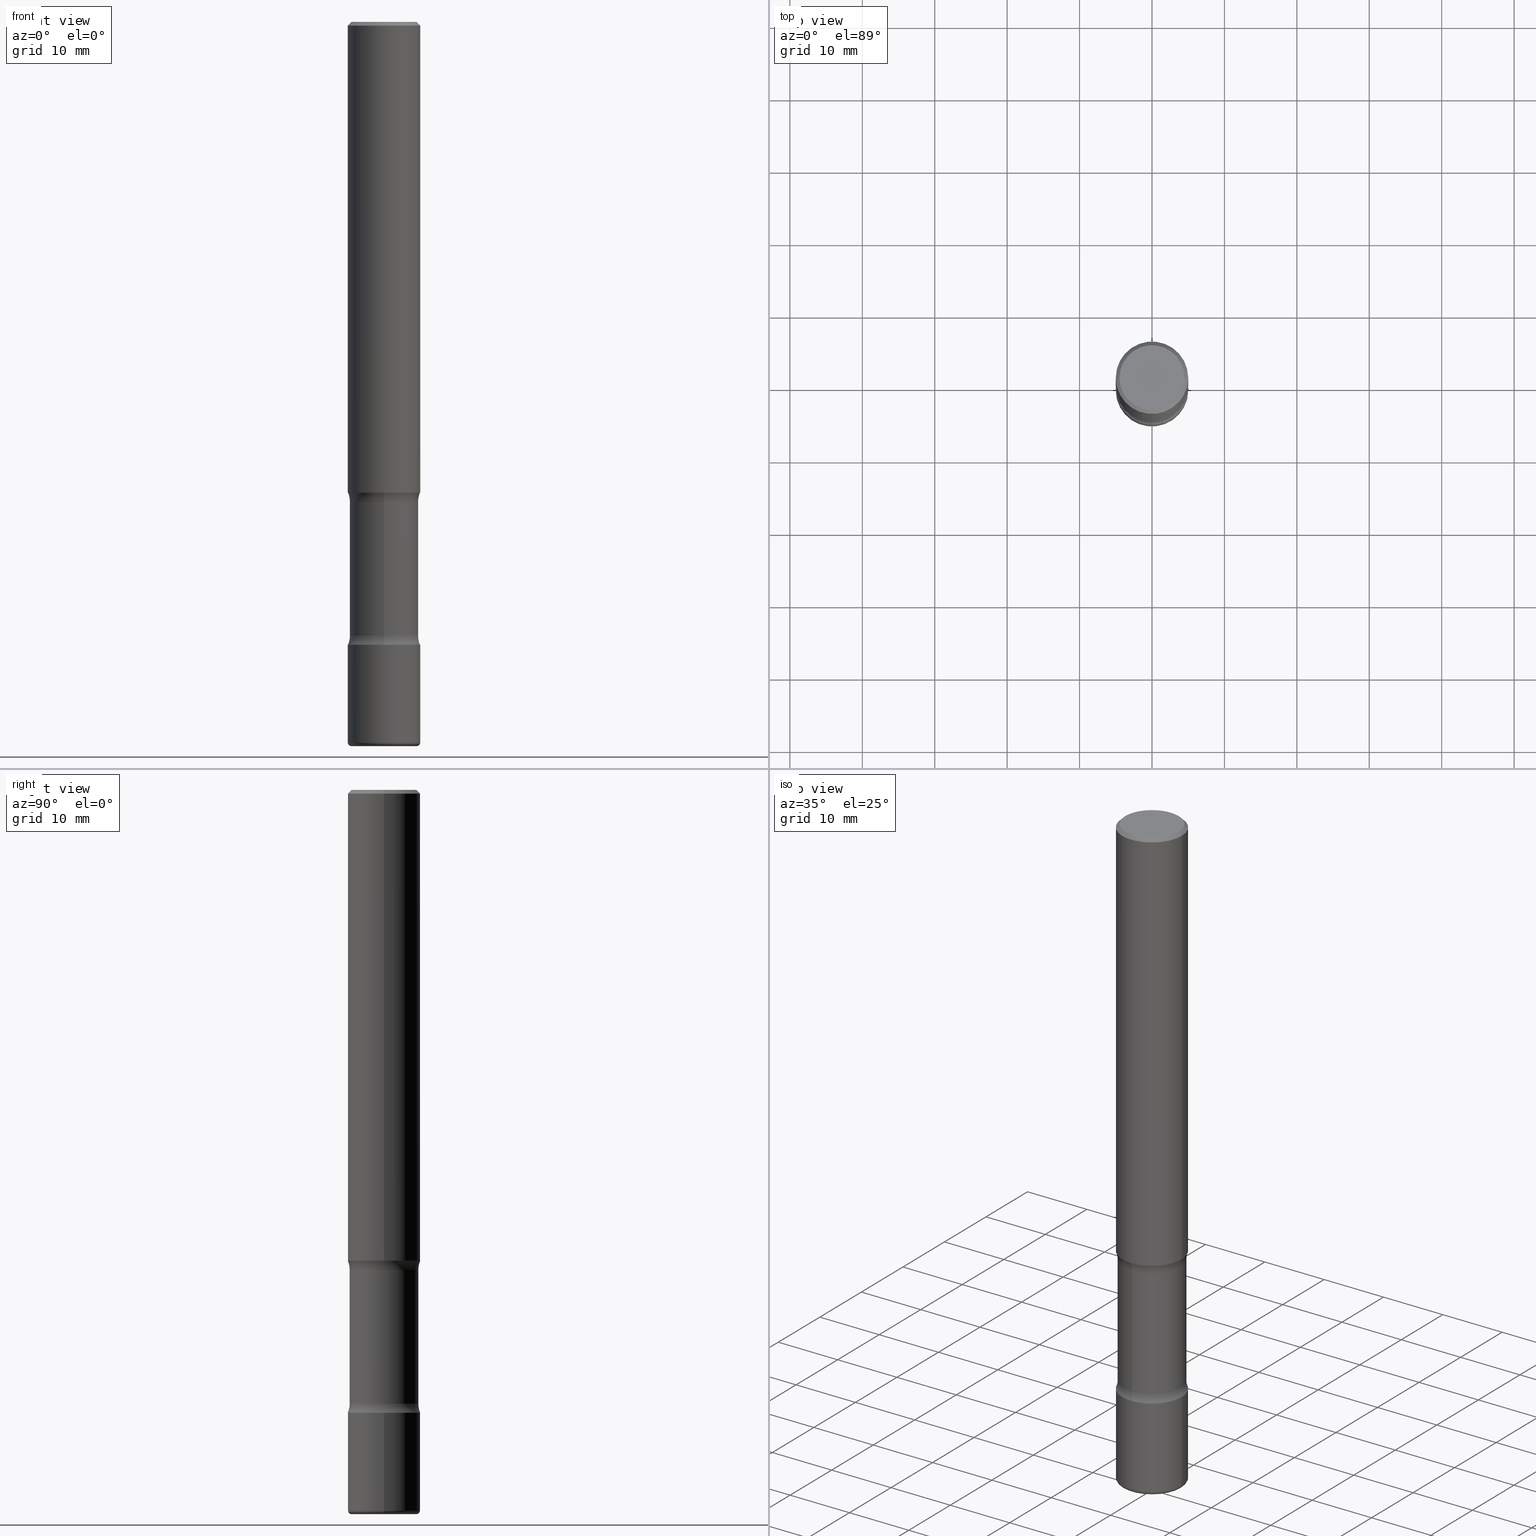
[diagram: canonical four-view strip — front | top / right | iso, engineering-drawing reading convention]
A machine part, canonical four-view strip (front | top / right | iso — engineering-drawing reading convention). The complete STEP part file that produces these views, byte-faithful:
ISO-10303-21;
HEADER;
FILE_DESCRIPTION (( 'STEP AP203' ),
    '1' );
FILE_NAME ('44798.STEP',
    '2024-03-02T03:27:32',
    ( '' ),
    ( '' ),
    'SwSTEP 2.0',
    'SolidWorks 2023',
    '' );
FILE_SCHEMA (( 'CONFIG_CONTROL_DESIGN' ));
ENDSEC;

DATA;
#1 = DIRECTION ( 'NONE',  ( -2.445468806185136597E-29, 3.491481338843145583E-15, 1.000000000000000000 ) ) ;
#2 = ORIENTED_EDGE ( 'NONE', *, *, #424, .T. ) ;
#3 = PRODUCT_DEFINITION ( 'UNKNOWN', '', #550, #444 ) ;
#4 =( LENGTH_UNIT ( ) NAMED_UNIT ( * ) SI_UNIT ( $, .METRE. ) );
#5 = ORIENTED_EDGE ( 'NONE', *, *, #282, .F. ) ;
#6 = EDGE_CURVE ( 'NONE', #33, #47, #157, .T. ) ;
#7 = DIRECTION ( 'NONE',  ( 2.591588243807108620E-29, -3.282229987566573640E-15, -1.000000000000000000 ) ) ;
#8 = AXIS2_PLACEMENT_3D ( 'NONE', #251, #342, #427 ) ;
#9 = CIRCLE ( 'NONE', #526, 0.1968500000000001082 ) ;
#10 = APPROVAL_PERSON_ORGANIZATION ( #492, #144, #273 ) ;
#11 = DIRECTION ( 'NONE',  ( 1.000000000000000000, -6.982962677686266711E-15, 4.875932113059883053E-29 ) ) ;
#12 = DIRECTION ( 'NONE',  ( -2.445468806185136877E-29, 3.491481338843145188E-15, 1.000000000000000000 ) ) ;
#13 = COORDINATED_UNIVERSAL_TIME_OFFSET ( 5, 0, .BEHIND. ) ;
#14 = CARTESIAN_POINT ( 'NONE',  ( 0.1771500000000001962, -1.498299386937758739E-14, -3.937000000000000277 ) ) ;
#15 = DIRECTION ( 'NONE',  ( -1.000000000000000000, 6.982962677686265922E-15, -4.883557194083112340E-29 ) ) ;
#16 = CARTESIAN_POINT ( 'NONE',  ( -1.350489030861243387E-15, -0.1968500000000119043, -3.385799999999999255 ) ) ;
#17 = ADVANCED_FACE ( 'NONE', ( #514 ), #322, .T. ) ;
#18 = AXIS2_PLACEMENT_3D ( 'NONE', #241, #66, #378 ) ;
#19 = EDGE_CURVE ( 'NONE', #390, #354, #445, .T. ) ;
#20 = FACE_OUTER_BOUND ( 'NONE', #554, .T. ) ;
#21 = DATE_AND_TIME ( #499, #204 ) ;
#22 = CYLINDRICAL_SURFACE ( 'NONE', #81, 0.1866500000000000381 ) ;
#23 = DIRECTION ( 'NONE',  ( 7.105427357601001859E-15, 1.000000000000000000, -3.491481338843145583E-15 ) ) ;
#24 = EDGE_LOOP ( 'NONE', ( #41, #301, #239, #469 ) ) ;
#25 = CLOSED_SHELL ( 'NONE', ( #486, #245, #460, #502, #350, #279, #181, #307 ) ) ;
#26 = AXIS2_PLACEMENT_3D ( 'NONE', #171, #515, #295 ) ;
#27 = PERSON_AND_ORGANIZATION ( #148, #318 ) ;
#28 = DIRECTION ( 'NONE',  ( -2.445468806185136597E-29, 3.491481338843145583E-15, 1.000000000000000000 ) ) ;
#29 = ORIENTED_EDGE ( 'NONE', *, *, #294, .T. ) ;
#30 = DIRECTION ( 'NONE',  ( 1.000000000000000000, -6.982962677686266711E-15, 0.000000000000000000 ) ) ;
#31 = EDGE_LOOP ( 'NONE', ( #286, #117 ) ) ;
#32 = DIRECTION ( 'NONE',  ( 2.591588243807108620E-29, -3.282229987566573640E-15, -1.000000000000000000 ) ) ;
#33 = VERTEX_POINT ( 'NONE', #434 ) ;
#34 = CIRCLE ( 'NONE', #26, 0.1968500000000001082 ) ;
#35 = CYLINDRICAL_SURFACE ( 'NONE', #52, 0.1866500000000000381 ) ;
#36 = EDGE_LOOP ( 'NONE', ( #123, #2, #330, #509 ) ) ;
#37 = CARTESIAN_POINT ( 'NONE',  ( 9.579634954469036932E-29, -1.367717984865025539E-14, -3.917300000000000448 ) ) ;
#38 = VERTEX_POINT ( 'NONE', #14 ) ;
#39 = EDGE_CURVE ( 'NONE', #520, #71, #194, .T. ) ;
#40 = DIRECTION ( 'NONE',  ( 6.982962677686265922E-15, 1.000000000000000000, -3.282229987566573640E-15 ) ) ;
#41 = ORIENTED_EDGE ( 'NONE', *, *, #39, .F. ) ;
#42 = DIRECTION ( 'NONE',  ( 6.982962677686265922E-15, 1.000000000000000000, -3.282229987566573640E-15 ) ) ;
#43 = CLOSED_SHELL ( 'NONE', ( #79, #380, #338, #359, #394, #63 ) ) ;
#44 = ORIENTED_EDGE ( 'NONE', *, *, #374, .T. ) ;
#45 = ADVANCED_FACE ( 'NONE', ( #20 ), #188, .T. ) ;
#46 = CARTESIAN_POINT ( 'NONE',  ( 1.303369983790223149E-15, 0.1866499999999883530, -3.336343352317408861 ) ) ;
#47 = VERTEX_POINT ( 'NONE', #225 ) ;
#48 = PERSON_AND_ORGANIZATION_ROLE ( 'design_owner' ) ;
#49 = MANIFOLD_SOLID_BREP ( 'Body-Move/Copy2[2]', #516 ) ;
#50 = CARTESIAN_POINT ( 'NONE',  ( -1.043851414335219820E-46, 1.490343170380447200E-32, 4.268512490100411279E-18 ) ) ;
#51 = DIRECTION ( 'NONE',  ( 1.000000000000000000, -6.860497997771530774E-15, 4.843361469599724329E-29 ) ) ;
#52 = AXIS2_PLACEMENT_3D ( 'NONE', #83, #510, #125 ) ;
#53 = CALENDAR_DATE ( 2024, 1, 3 ) ;
#54 = CARTESIAN_POINT ( 'NONE',  ( 8.279868283981634472E-29, -1.182145751705512057E-14, -3.385799999999999699 ) ) ;
#55 = CALENDAR_DATE ( 2024, 1, 3 ) ;
#56 = CARTESIAN_POINT ( 'NONE',  ( 0.1968499999999999694, -1.374596203102541411E-15, 9.598753983154298056E-30 ) ) ;
#57 = CARTESIAN_POINT ( 'NONE',  ( 0.1968499999999998307, -1.420318657638187938E-15, -0.02000000000000006981 ) ) ;
#58 = DIRECTION ( 'NONE',  ( 6.982962677686265922E-15, 1.000000000000000000, -2.775563112689115117E-15 ) ) ;
#59 = CIRCLE ( 'NONE', #382, 0.01969999999999989468 ) ;
#60 = EDGE_CURVE ( 'NONE', #457, #375, #453, .T. ) ;
#61 = CC_DESIGN_SECURITY_CLASSIFICATION ( #103, ( #550 ) ) ;
#62 = DIRECTION ( 'NONE',  ( -2.591588243807108060E-29, 3.282229987566573640E-15, 1.000000000000000000 ) ) ;
#63 = ADVANCED_FACE ( 'NONE', ( #308 ), #366, .F. ) ;
#64 = ORIENTED_EDGE ( 'NONE', *, *, #513, .T. ) ;
#65 = PERSON_AND_ORGANIZATION_ROLE ( 'creator' ) ;
#66 = DIRECTION ( 'NONE',  ( 2.591588243807108620E-29, -3.282229987566573640E-15, -1.000000000000000000 ) ) ;
#67 = VERTEX_POINT ( 'NONE', #399 ) ;
#68 = DATE_AND_TIME ( #458, #336 ) ;
#69 = ADVANCED_FACE ( 'NONE', ( #320 ), #367, .F. ) ;
#70 = CARTESIAN_POINT ( 'NONE',  ( -1.280511951283959495E-15, -0.1866500000000136661, -3.936999999999999389 ) ) ;
#71 = VERTEX_POINT ( 'NONE', #528 ) ;
#72 = DATE_TIME_ROLE ( 'classification_date' ) ;
#73 = CARTESIAN_POINT ( 'NONE',  ( -2.138074201005416717E-15, -0.3116500000000117510, -3.336343352317407085 ) ) ;
#74 = ORIENTED_EDGE ( 'NONE', *, *, #430, .T. ) ;
#75 = DIRECTION ( 'NONE',  ( 1.000000000000000000, -6.982962677686272233E-15, 0.000000000000000000 ) ) ;
#76 = EDGE_LOOP ( 'NONE', ( #537, #180, #253, #439 ) ) ;
#77 = CARTESIAN_POINT ( 'NONE',  ( 6.257954675027765161E-29, -8.934700746099610252E-15, -2.559000000000000163 ) ) ;
#78 = ORIENTED_EDGE ( 'NONE', *, *, #416, .F. ) ;
#79 = ADVANCED_FACE ( 'NONE', ( #231 ), #495, .T. ) ;
#80 = CIRCLE ( 'NONE', #346, 0.1866500000000000103 ) ;
#81 = AXIS2_PLACEMENT_3D ( 'NONE', #333, #32, #329 ) ;
#82 = CC_DESIGN_PERSON_AND_ORGANIZATION_ASSIGNMENT ( #398, #404, ( #3 ) ) ;
#83 = CARTESIAN_POINT ( 'NONE',  ( 9.708351723968114409E-29, -1.363062268620181708E-14, -3.937000000000000277 ) ) ;
#84 = CARTESIAN_POINT ( 'NONE',  ( 2.176240318501006882E-15, 0.3116499999999883808, -3.336343352317409305 ) ) ;
#85 = EDGE_CURVE ( 'NONE', #387, #67, #260, .T. ) ;
#86 = CARTESIAN_POINT ( 'NONE',  ( 0.000000000000000000, 0.000000000000000000, 0.000000000000000000 ) ) ;
#87 = DIRECTION ( 'NONE',  ( -6.982962677686265133E-15, -1.000000000000000000, 0.000000000000000000 ) ) ;
#88 = CYLINDRICAL_SURFACE ( 'NONE', #335, 0.1968500000000001360 ) ;
#89 = ORIENTED_EDGE ( 'NONE', *, *, #259, .T. ) ;
#90 = CC_DESIGN_PERSON_AND_ORGANIZATION_ASSIGNMENT ( #27, #65, ( #550 ) ) ;
#91 = DIRECTION ( 'NONE',  ( 2.591588243807108060E-29, -3.282229987566573640E-15, -1.000000000000000000 ) ) ;
#92 = AXIS2_PLACEMENT_3D ( 'NONE', #431, #480, #302 ) ;
#93 = EDGE_LOOP ( 'NONE', ( #222, #283, #388, #352 ) ) ;
#94 = LOCAL_TIME ( 22, 27, 32.00000000000000000, #467 ) ;
#95 = LINE ( 'NONE', #56, #130 ) ;
#96 = EDGE_CURVE ( 'NONE', #412, #559, #95, .T. ) ;
#97 = DIRECTION ( 'NONE',  ( 2.591588243807108620E-29, -3.282229987566573640E-15, -1.000000000000000000 ) ) ;
#98 = CARTESIAN_POINT ( 'NONE',  ( -1.315500491072608935E-15, -0.1866500000000116399, -3.336343352317407529 ) ) ;
#99 = CARTESIAN_POINT ( 'NONE',  ( 0.000000000000000000, 0.000000000000000000, 0.000000000000000000 ) ) ;
#100 = DIRECTION ( 'NONE',  ( 6.982962677686265922E-15, 1.000000000000000000, -2.775563112689112751E-15 ) ) ;
#101 = AXIS2_PLACEMENT_3D ( 'NONE', #441, #107, #191 ) ;
#102 = AXIS2_PLACEMENT_3D ( 'NONE', #344, #292, #389 ) ;
#103 = SECURITY_CLASSIFICATION ( '', '', #542 ) ;
#104 = APPROVAL_STATUS ( 'not_yet_approved' ) ;
#105 = CARTESIAN_POINT ( 'NONE',  ( 6.137143124001919052E-29, -9.107709763335080543E-15, -2.559000000000000163 ) ) ;
#106 =( NAMED_UNIT ( * ) PLANE_ANGLE_UNIT ( ) SI_UNIT ( $, .RADIAN. ) );
#107 = DIRECTION ( 'NONE',  ( -2.445468806185136597E-29, 3.491481338843145583E-15, 1.000000000000000000 ) ) ;
#108 = COORDINATED_UNIVERSAL_TIME_OFFSET ( 5, 0, .BEHIND. ) ;
#109 = FACE_OUTER_BOUND ( 'NONE', #255, .T. ) ;
#110 = AXIS2_PLACEMENT_3D ( 'NONE', #534, #7, #363 ) ;
#111 = AXIS2_PLACEMENT_3D ( 'NONE', #73, #288, #159 ) ;
#112 = CC_DESIGN_APPROVAL ( #494, ( #3 ) ) ;
#113 = CARTESIAN_POINT ( 'NONE',  ( 9.579634954469036932E-29, -1.367717984865025539E-14, -3.917300000000000448 ) ) ;
#114 = VERTEX_POINT ( 'NONE', #529 ) ;
#115 = PERSON_AND_ORGANIZATION ( #148, #318 ) ;
#116 = DIRECTION ( 'NONE',  ( 6.982962677686265922E-15, 1.000000000000000000, -3.282229987566573640E-15 ) ) ;
#117 = ORIENTED_EDGE ( 'NONE', *, *, #424, .F. ) ;
#118 = CARTESIAN_POINT ( 'NONE',  ( 8.158923594815368929E-29, -1.164878055458961151E-14, -3.336343352317407973 ) ) ;
#119 = ORIENTED_EDGE ( 'NONE', *, *, #126, .T. ) ;
#120 = VECTOR ( 'NONE', #153, 39.37007874015748143 ) ;
#121 = AXIS2_PLACEMENT_3D ( 'NONE', #167, #552, #339 ) ;
#122 = CARTESIAN_POINT ( 'NONE',  ( -0.1771500000000001962, -1.241845339225123848E-14, -3.917300000000000448 ) ) ;
#123 = ORIENTED_EDGE ( 'NONE', *, *, #223, .F. ) ;
#124 = EDGE_CURVE ( 'NONE', #354, #136, #80, .T. ) ;
#125 = DIRECTION ( 'NONE',  ( 6.982962677686266711E-15, 1.000000000000000000, -2.927241354046892699E-15 ) ) ;
#126 = EDGE_CURVE ( 'NONE', #160, #390, #525, .T. ) ;
#127 = ORIENTED_EDGE ( 'NONE', *, *, #430, .F. ) ;
#128 = DIRECTION ( 'NONE',  ( -2.445468806185136597E-29, 3.491481338843145583E-15, 1.000000000000000000 ) ) ;
#129 = CARTESIAN_POINT ( 'NONE',  ( 4.890937612370289799E-31, -6.982962677686315028E-17, -0.02000000000000006981 ) ) ;
#130 = VECTOR ( 'NONE', #12, 39.37007874015748143 ) ;
#131 = CIRCLE ( 'NONE', #186, 0.1968500000000001915 ) ;
#132 = PLANE ( 'NONE',  #483 ) ;
#133 = PRODUCT ( '44798', '44798', '', ( #140 ) ) ;
#134 = EDGE_LOOP ( 'NONE', ( #505, #220, #327, #379 ) ) ;
#135 = CARTESIAN_POINT ( 'NONE',  ( 0.1768499999999998129, -1.316798864272041155E-15, 4.268512490109333727E-18 ) ) ;
#136 = VERTEX_POINT ( 'NONE', #98 ) ;
#137 = CARTESIAN_POINT ( 'NONE',  ( 6.283517401289684484E-29, -9.243970108248332967E-15, -2.608456647682592333 ) ) ;
#138 = ORIENTED_EDGE ( 'NONE', *, *, #406, .F. ) ;
#139 = TOROIDAL_SURFACE ( 'NONE', #518, 0.3116500000000000936, 0.1250000000000000278 ) ;
#140 = MECHANICAL_CONTEXT ( 'NONE', #385, 'mechanical' ) ;
#141 = CONICAL_SURFACE ( 'NONE', #166, 0.1968499999999998307, 0.7853981633974471688 ) ;
#142 = ORIENTED_EDGE ( 'NONE', *, *, #151, .T. ) ;
#143 = DIRECTION ( 'NONE',  ( -2.445468806185136597E-29, 3.491481338843145583E-15, 1.000000000000000000 ) ) ;
#144 = APPROVAL ( #104, 'UNSPECIFIED' ) ;
#145 = APPLICATION_PROTOCOL_DEFINITION ( 'international standard', 'config_control_design', 1994, #385 ) ;
#146 = DIRECTION ( 'NONE',  ( 2.591588243807108620E-29, -3.282229987566573640E-15, -1.000000000000000000 ) ) ;
#147 = DATE_AND_TIME ( #53, #356 ) ;
#148 = PERSON ( 'UNSPECIFIED', 'UNSPECIFIED', 'UNSPECIFIED', ('UNSPECIFIED'), ('UNSPECIFIED'), ('UNSPECIFIED') ) ;
#149 = CARTESIAN_POINT ( 'NONE',  ( 8.158923594815368929E-29, -1.164878055458961151E-14, -3.336343352317407973 ) ) ;
#150 = CIRCLE ( 'NONE', #462, 0.1250000000000000278 ) ;
#151 = EDGE_CURVE ( 'NONE', #390, #160, #297, .T. ) ;
#152 = PRODUCT_RELATED_PRODUCT_CATEGORY ( 'detail', '', ( #133 ) ) ;
#153 = DIRECTION ( 'NONE',  ( -0.7071067811865466846, 2.468850131082247989E-15, -0.7071067811865483499 ) ) ;
#154 = DIRECTION ( 'NONE',  ( -1.000000000000000000, 6.982962677686266711E-15, 0.000000000000000000 ) ) ;
#155 = FACE_OUTER_BOUND ( 'NONE', #544, .T. ) ;
#156 = ORIENTED_EDGE ( 'NONE', *, *, #174, .F. ) ;
#157 = CIRCLE ( 'NONE', #8, 0.1968500000000001082 ) ;
#158 = CIRCLE ( 'NONE', #355, 0.1768499999999998129 ) ;
#159 = DIRECTION ( 'NONE',  ( 6.860497997771529985E-15, 1.000000000000000000, 0.000000000000000000 ) ) ;
#160 = VERTEX_POINT ( 'NONE', #16 ) ;
#161 = CARTESIAN_POINT ( 'NONE',  ( 6.257954675027765161E-29, -8.934700746099610252E-15, -2.559000000000000163 ) ) ;
#162 = ORIENTED_EDGE ( 'NONE', *, *, #39, .T. ) ;
#163 = DIRECTION ( 'NONE',  ( -2.445468806185136597E-29, 3.491481338843145583E-15, 1.000000000000000000 ) ) ;
#164 = ORIENTED_EDGE ( 'NONE', *, *, #96, .F. ) ;
#165 = AXIS2_PLACEMENT_3D ( 'NONE', #54, #146, #317 ) ;
#166 = AXIS2_PLACEMENT_3D ( 'NONE', #381, #199, #154 ) ;
#167 = CARTESIAN_POINT ( 'NONE',  ( 8.151697017269320442E-29, -1.165912942494680306E-14, -3.336343352317407973 ) ) ;
#168 = VERTEX_POINT ( 'NONE', #312 ) ;
#169 = FACE_OUTER_BOUND ( 'NONE', #216, .T. ) ;
#170 = ORIENTED_EDGE ( 'NONE', *, *, #259, .F. ) ;
#171 = CARTESIAN_POINT ( 'NONE',  ( 6.257954675027765161E-29, -8.934700746099610252E-15, -2.559000000000000163 ) ) ;
#172 = ORIENTED_EDGE ( 'NONE', *, *, #391, .T. ) ;
#173 = EDGE_CURVE ( 'NONE', #168, #47, #493, .T. ) ;
#174 = EDGE_CURVE ( 'NONE', #551, #38, #473, .T. ) ;
#175 = ADVANCED_BREP_SHAPE_REPRESENTATION ( '44798', ( #242, #49, #256, #365 ), #464 ) ;
#176 = AXIS2_PLACEMENT_3D ( 'NONE', #37, #348, #263 ) ;
#177 = FACE_OUTER_BOUND ( 'NONE', #334, .T. ) ;
#178 = EDGE_LOOP ( 'NONE', ( #74, #471 ) ) ;
#179 = DIRECTION ( 'NONE',  ( 1.000000000000000000, -6.982962677686265133E-15, 0.000000000000000000 ) ) ;
#180 = ORIENTED_EDGE ( 'NONE', *, *, #151, .F. ) ;
#181 = ADVANCED_FACE ( 'NONE', ( #193 ), #211, .F. ) ;
#182 = EDGE_CURVE ( 'NONE', #520, #387, #150, .T. ) ;
#183 = ORIENTED_EDGE ( 'NONE', *, *, #556, .T. ) ;
#184 = AXIS2_PLACEMENT_3D ( 'NONE', #485, #358, #531 ) ;
#185 = DIRECTION ( 'NONE',  ( 6.982962677686265922E-15, 1.000000000000000000, -3.282229987566573640E-15 ) ) ;
#186 = AXIS2_PLACEMENT_3D ( 'NONE', #500, #285, #468 ) ;
#187 = CARTESIAN_POINT ( 'NONE',  ( -0.1968499999999998307, 1.304766576325677324E-15, -0.02000000000000006981 ) ) ;
#188 = CYLINDRICAL_SURFACE ( 'NONE', #371, 0.1968499999999999694 ) ;
#189 = DATE_AND_TIME ( #55, #429 ) ;
#190 = PRODUCT_DEFINITION_SHAPE ( 'NONE', 'NONE',  #3 ) ;
#191 = DIRECTION ( 'NONE',  ( 1.000000000000000000, -6.982962677686266711E-15, 4.876176775795935793E-29 ) ) ;
#192 = APPROVAL_ROLE ( '' ) ;
#193 = FACE_OUTER_BOUND ( 'NONE', #76, .T. ) ;
#194 = CIRCLE ( 'NONE', #110, 0.1866500000000000659 ) ;
#195 = CIRCLE ( 'NONE', #409, 0.1968500000000002748 ) ;
#196 = ADVANCED_FACE ( 'NONE', ( #403 ), #496, .T. ) ;
#197 = CARTESIAN_POINT ( 'NONE',  ( 8.279868283981634472E-29, -1.182145751705512057E-14, -3.385799999999999699 ) ) ;
#198 = SHAPE_DEFINITION_REPRESENTATION ( #190, #175 ) ;
#199 = DIRECTION ( 'NONE',  ( 2.445468806185136597E-29, -3.491481338843145583E-15, -1.000000000000000000 ) ) ;
#200 = EDGE_LOOP ( 'NONE', ( #293, #162, #64, #383 ) ) ;
#201 = CARTESIAN_POINT ( 'NONE',  ( 6.137143124001919052E-29, -9.107709763335080543E-15, -2.559000000000000163 ) ) ;
#202 = VECTOR ( 'NONE', #433, 39.37007874015748143 ) ;
#203 = CC_DESIGN_PERSON_AND_ORGANIZATION_ASSIGNMENT ( #332, #506, ( #103 ) ) ;
#204 = LOCAL_TIME ( 22, 27, 32.00000000000000000, #236 ) ;
#205 = ORIENTED_EDGE ( 'NONE', *, *, #294, .F. ) ;
#206 = APPROVAL_STATUS ( 'not_yet_approved' ) ;
#207 = DIRECTION ( 'NONE',  ( 2.591588243807108620E-29, -3.282229987566573640E-15, -1.000000000000000000 ) ) ;
#208 = EDGE_CURVE ( 'NONE', #520, #136, #321, .T. ) ;
#209 = DIRECTION ( 'NONE',  ( -1.000000000000000000, 7.105427357600965571E-15, 0.000000000000000000 ) ) ;
#210 = ORIENTED_EDGE ( 'NONE', *, *, #173, .F. ) ;
#211 = TOROIDAL_SURFACE ( 'NONE', #314, 0.3116500000000000936, 0.1250000000000000278 ) ;
#212 = VECTOR ( 'NONE', #97, 39.37007874015748143 ) ;
#213 = CARTESIAN_POINT ( 'NONE',  ( -0.1968500000000001082, -3.103561811094476227E-15, -2.559000000000000163 ) ) ;
#214 = ORIENTED_EDGE ( 'NONE', *, *, #229, .T. ) ;
#215 = DIRECTION ( 'NONE',  ( -2.445468806185136877E-29, 3.491481338843145188E-15, 1.000000000000000000 ) ) ;
#216 = EDGE_LOOP ( 'NONE', ( #511, #170, #183, #289 ) ) ;
#217 = FACE_OUTER_BOUND ( 'NONE', #419, .T. ) ;
#218 = ORIENTED_EDGE ( 'NONE', *, *, #287, .T. ) ;
#219 = CARTESIAN_POINT ( 'NONE',  ( -0.1968500000000001360, 1.398703375343758182E-15, -9.682923725166790684E-30 ) ) ;
#220 = ORIENTED_EDGE ( 'NONE', *, *, #406, .T. ) ;
#221 = DIRECTION ( 'NONE',  ( 1.000000000000000000, -6.982962677686266711E-15, 0.000000000000000000 ) ) ;
#222 = ORIENTED_EDGE ( 'NONE', *, *, #126, .F. ) ;
#223 = EDGE_CURVE ( 'NONE', #501, #375, #504, .T. ) ;
#224 = COORDINATED_UNIVERSAL_TIME_OFFSET ( 5, 0, .BEHIND. ) ;
#225 = CARTESIAN_POINT ( 'NONE',  ( 0.1968500000000001082, -1.319605372015766376E-14, -3.385799999999999699 ) ) ;
#226 = CARTESIAN_POINT ( 'NONE',  ( -0.1771500000000001962, -1.238285602396647324E-14, -3.937000000000000277 ) ) ;
#227 = AXIS2_PLACEMENT_3D ( 'NONE', #300, #549, #179 ) ;
#228 = DIRECTION ( 'NONE',  ( 6.860497997771532351E-15, 1.000000000000000000, 0.000000000000000000 ) ) ;
#229 = EDGE_CURVE ( 'NONE', #551, #114, #59, .T. ) ;
#230 = DIRECTION ( 'NONE',  ( 1.000000000000000000, -6.982962677686266711E-15, 4.876176775795935793E-29 ) ) ;
#231 = FACE_OUTER_BOUND ( 'NONE', #436, .T. ) ;
#232 = APPROVAL_ROLE ( '' ) ;
#233 = VECTOR ( 'NONE', #463, 39.37007874015748143 ) ;
#234 = CARTESIAN_POINT ( 'NONE',  ( 0.000000000000000000, 0.000000000000000000, 0.000000000000000000 ) ) ;
#235 = CIRCLE ( 'NONE', #92, 0.01969999999999989468 ) ;
#236 = COORDINATED_UNIVERSAL_TIME_OFFSET ( 5, 0, .BEHIND. ) ;
#237 = FACE_OUTER_BOUND ( 'NONE', #524, .T. ) ;
#238 = CARTESIAN_POINT ( 'NONE',  ( 9.627810689950883669E-29, -1.374596203102546341E-14, -3.937000000000000277 ) ) ;
#239 = ORIENTED_EDGE ( 'NONE', *, *, #85, .T. ) ;
#240 = DATE_AND_TIME ( #284, #94 ) ;
#241 = CARTESIAN_POINT ( 'NONE',  ( 6.265314390714234203E-29, -9.270037855443396476E-15, -2.608456647682592333 ) ) ;
#242 = MANIFOLD_SOLID_BREP ( 'Body-Move/Copy2[1]', #43 ) ;
#243 = AXIS2_PLACEMENT_3D ( 'NONE', #137, #304, #40 ) ;
#244 = DIRECTION ( 'NONE',  ( 2.438088387897960049E-29, -3.491481338843145188E-15, -1.000000000000000000 ) ) ;
#245 = ADVANCED_FACE ( 'NONE', ( #372 ), #139, .F. ) ;
#246 = ORIENTED_EDGE ( 'NONE', *, *, #248, .F. ) ;
#247 = FACE_OUTER_BOUND ( 'NONE', #349, .T. ) ;
#248 = EDGE_CURVE ( 'NONE', #67, #387, #195, .T. ) ;
#249 = EDGE_LOOP ( 'NONE', ( #396, #377, #44, #5 ) ) ;
#250 = LINE ( 'NONE', #426, #202 ) ;
#251 = CARTESIAN_POINT ( 'NONE',  ( 8.279868283981634472E-29, -1.182145751705512057E-14, -3.385799999999999699 ) ) ;
#252 = AXIS2_PLACEMENT_3D ( 'NONE', #113, #28, #75 ) ;
#253 = ORIENTED_EDGE ( 'NONE', *, *, #19, .T. ) ;
#254 = FACE_OUTER_BOUND ( 'NONE', #24, .T. ) ;
#255 = EDGE_LOOP ( 'NONE', ( #78, #156 ) ) ;
#256 = MANIFOLD_SOLID_BREP ( 'Body-Move/Copy2[4]', #25 ) ;
#257 = CARTESIAN_POINT ( 'NONE',  ( 0.1968500000000001082, -1.030929694920215344E-14, -2.559000000000000163 ) ) ;
#258 = ORIENTED_EDGE ( 'NONE', *, *, #173, .T. ) ;
#259 = EDGE_CURVE ( 'NONE', #71, #520, #418, .T. ) ;
#260 = CIRCLE ( 'NONE', #268, 0.1968500000000002748 ) ;
#261 = AXIS2_PLACEMENT_3D ( 'NONE', #420, #290, #30 ) ;
#262 = CIRCLE ( 'NONE', #121, 0.1866500000000000103 ) ;
#263 = DIRECTION ( 'NONE',  ( 1.000000000000000000, -6.982962677686265922E-15, 4.883557194083112340E-29 ) ) ;
#264 = APPLICATION_CONTEXT ( 'configuration controlled 3d designs of mechanical parts and assemblies' ) ;
#265 = CARTESIAN_POINT ( 'NONE',  ( 8.279868283981634472E-29, -1.182145751705512057E-14, -3.385799999999999699 ) ) ;
#266 = DIRECTION ( 'NONE',  ( -2.445468806185136597E-29, 3.491481338843145583E-15, 1.000000000000000000 ) ) ;
#267 = DIRECTION ( 'NONE',  ( 2.591588243807108620E-29, -3.282229987566573640E-15, -1.000000000000000000 ) ) ;
#268 = AXIS2_PLACEMENT_3D ( 'NONE', #105, #410, #100 ) ;
#269 = DIRECTION ( 'NONE',  ( 2.591588243807108620E-29, -3.282229987566573640E-15, -1.000000000000000000 ) ) ;
#270 = CIRCLE ( 'NONE', #227, 0.1968500000000001082 ) ;
#271 = EDGE_CURVE ( 'NONE', #160, #136, #498, .T. ) ;
#272 = DIRECTION ( 'NONE',  ( -2.445468806185136877E-29, 3.491481338843145188E-15, 1.000000000000000000 ) ) ;
#273 = APPROVAL_ROLE ( '' ) ;
#274 = CARTESIAN_POINT ( 'NONE',  ( 9.627810689950883669E-29, -1.374596203102546341E-14, -3.937000000000000277 ) ) ;
#275 = ADVANCED_FACE ( 'NONE', ( #155 ), #543, .F. ) ;
#276 = DIRECTION ( 'NONE',  ( 6.982962677686266711E-15, 1.000000000000000000, -2.927241354046893093E-15 ) ) ;
#277 = AXIS2_PLACEMENT_3D ( 'NONE', #197, #361, #533 ) ;
#278 = PLANE ( 'NONE',  #324 ) ;
#279 = ADVANCED_FACE ( 'NONE', ( #237 ), #540, .F. ) ;
#280 = APPROVAL_DATE_TIME ( #21, #343 ) ;
#281 = DIRECTION ( 'NONE',  ( 6.982962677686265922E-15, 1.000000000000000000, -2.775563112689112751E-15 ) ) ;
#282 = EDGE_CURVE ( 'NONE', #114, #168, #131, .T. ) ;
#283 = ORIENTED_EDGE ( 'NONE', *, *, #271, .T. ) ;
#284 = CALENDAR_DATE ( 2024, 1, 3 ) ;
#285 = DIRECTION ( 'NONE',  ( -2.445468806185136597E-29, 3.491481338843145583E-15, 1.000000000000000000 ) ) ;
#286 = ORIENTED_EDGE ( 'NONE', *, *, #287, .F. ) ;
#287 = EDGE_CURVE ( 'NONE', #412, #501, #9, .T. ) ;
#288 = DIRECTION ( 'NONE',  ( 1.000000000000000000, -6.860497997771530774E-15, 4.843361469599724329E-29 ) ) ;
#289 = ORIENTED_EDGE ( 'NONE', *, *, #248, .T. ) ;
#290 = DIRECTION ( 'NONE',  ( -2.445468806185136597E-29, 3.491481338843145583E-15, 1.000000000000000000 ) ) ;
#291 = ORIENTED_EDGE ( 'NONE', *, *, #223, .T. ) ;
#292 = DIRECTION ( 'NONE',  ( -2.445468806185136597E-29, 3.491481338843145583E-15, 1.000000000000000000 ) ) ;
#293 = ORIENTED_EDGE ( 'NONE', *, *, #208, .F. ) ;
#294 = EDGE_CURVE ( 'NONE', #168, #114, #446, .T. ) ;
#295 = DIRECTION ( 'NONE',  ( 1.000000000000000000, -6.982962677686265133E-15, 0.000000000000000000 ) ) ;
#296 = DIRECTION ( 'NONE',  ( 2.445468806185136597E-29, -3.491481338843145583E-15, -1.000000000000000000 ) ) ;
#297 = CIRCLE ( 'NONE', #400, 0.1968500000000001082 ) ;
#298 = CIRCLE ( 'NONE', #490, 0.1771500000000001962 ) ;
#299 = CC_DESIGN_APPROVAL ( #343, ( #103 ) ) ;
#300 = CARTESIAN_POINT ( 'NONE',  ( 8.279868283981634472E-29, -1.182145751705512057E-14, -3.385799999999999699 ) ) ;
#301 = ORIENTED_EDGE ( 'NONE', *, *, #182, .T. ) ;
#302 = DIRECTION ( 'NONE',  ( 1.000000000000000000, -6.982962677686266711E-15, 0.000000000000000000 ) ) ;
#303 = ORIENTED_EDGE ( 'NONE', *, *, #313, .F. ) ;
#304 = DIRECTION ( 'NONE',  ( 2.591588243807108620E-29, -3.282229987566573640E-15, -1.000000000000000000 ) ) ;
#305 = ORIENTED_EDGE ( 'NONE', *, *, #282, .T. ) ;
#306 = VECTOR ( 'NONE', #503, 39.37007874015748143 ) ;
#307 = ADVANCED_FACE ( 'NONE', ( #411 ), #22, .T. ) ;
#308 = FACE_OUTER_BOUND ( 'NONE', #178, .T. ) ;
#309 = CARTESIAN_POINT ( 'NONE',  ( -2.138074201005435255E-15, -0.3116500000000093085, -2.608456647682591445 ) ) ;
#310 = UNCERTAINTY_MEASURE_WITH_UNIT (LENGTH_MEASURE( 1.000000000000000082E-05 ), #362, 'distance_accuracy_value', 'NONE');
#311 = APPLICATION_PROTOCOL_DEFINITION ( 'international standard', 'config_control_design', 1994, #264 ) ;
#312 = CARTESIAN_POINT ( 'NONE',  ( 0.1968500000000001082, -1.505177605175279857E-14, -3.917300000000000448 ) ) ;
#313 = EDGE_CURVE ( 'NONE', #559, #375, #548, .T. ) ;
#314 = AXIS2_PLACEMENT_3D ( 'NONE', #149, #267, #443 ) ;
#315 = DATE_TIME_ROLE ( 'creation_date' ) ;
#316 = AXIS2_PLACEMENT_3D ( 'NONE', #50, #402, #11 ) ;
#317 = DIRECTION ( 'NONE',  ( 6.982962677686265922E-15, 1.000000000000000000, -2.775563112689115117E-15 ) ) ;
#318 = ORGANIZATION ( 'UNSPECIFIED', 'UNSPECIFIED', '' ) ;
#319 = LENGTH_MEASURE_WITH_UNIT ( LENGTH_MEASURE( 0.02539999999999999897 ), #4 );
#320 = FACE_OUTER_BOUND ( 'NONE', #31, .T. ) ;
#321 = LINE ( 'NONE', #70, #233 ) ;
#322 = CONICAL_SURFACE ( 'NONE', #392, 0.1968499999999998307, 0.7853981633974471688 ) ;
#323 = CARTESIAN_POINT ( 'NONE',  ( 1.234936949548814815E-15, 0.1768499999999998129, -6.153342185293594620E-16 ) ) ;
#324 = AXIS2_PLACEMENT_3D ( 'NONE', #238, #413, #368 ) ;
#325 = ADVANCED_FACE ( 'NONE', ( #247 ), #141, .T. ) ;
#326 = CC_DESIGN_APPROVAL ( #144, ( #550 ) ) ;
#327 = ORIENTED_EDGE ( 'NONE', *, *, #313, .T. ) ;
#328 = PERSON_AND_ORGANIZATION ( #148, #318 ) ;
#329 = DIRECTION ( 'NONE',  ( 6.982962677686266711E-15, 1.000000000000000000, -2.927241354046892699E-15 ) ) ;
#330 = ORIENTED_EDGE ( 'NONE', *, *, #96, .T. ) ;
#331 = DIRECTION ( 'NONE',  ( -2.445468806185136597E-29, 3.491481338843145583E-15, 1.000000000000000000 ) ) ;
#332 = PERSON_AND_ORGANIZATION ( #148, #318 ) ;
#333 = CARTESIAN_POINT ( 'NONE',  ( 9.708351723968114409E-29, -1.363062268620181708E-14, -3.937000000000000277 ) ) ;
#334 = EDGE_LOOP ( 'NONE', ( #246, #546 ) ) ;
#335 = AXIS2_PLACEMENT_3D ( 'NONE', #86, #472, #395 ) ;
#336 = LOCAL_TIME ( 22, 27, 32.00000000000000000, #108 ) ;
#337 = APPROVAL_PERSON_ORGANIZATION ( #488, #494, #192 ) ;
#338 = ADVANCED_FACE ( 'NONE', ( #109 ), #278, .T. ) ;
#339 = DIRECTION ( 'NONE',  ( 6.982962677686266711E-15, 1.000000000000000000, -2.927241354046893093E-15 ) ) ;
#340 = ORIENTED_EDGE ( 'NONE', *, *, #553, .F. ) ;
#341 = CARTESIAN_POINT ( 'NONE',  ( -1.350489030861266264E-15, -0.1968500000000093231, -2.558999999999999719 ) ) ;
#342 = DIRECTION ( 'NONE',  ( -2.445468806185136597E-29, 3.491481338843145583E-15, 1.000000000000000000 ) ) ;
#343 = APPROVAL ( #206, 'UNSPECIFIED' ) ;
#344 = CARTESIAN_POINT ( 'NONE',  ( 9.579634954469036932E-29, -1.367717984865025539E-14, -3.917300000000000448 ) ) ;
#345 = VERTEX_POINT ( 'NONE', #135 ) ;
#346 = AXIS2_PLACEMENT_3D ( 'NONE', #448, #408, #276 ) ;
#347 = AXIS2_PLACEMENT_3D ( 'NONE', #323, #244, #455 ) ;
#348 = DIRECTION ( 'NONE',  ( -2.445468806185136597E-29, 3.491481338843145583E-15, 1.000000000000000000 ) ) ;
#349 = EDGE_LOOP ( 'NONE', ( #138, #340, #369, #555 ) ) ;
#350 = ADVANCED_FACE ( 'NONE', ( #177 ), #132, .F. ) ;
#351 = CARTESIAN_POINT ( 'NONE',  ( -0.1768499999999998129, 1.269851762937246267E-15, 4.268512490091652920E-18 ) ) ;
#352 = ORIENTED_EDGE ( 'NONE', *, *, #19, .F. ) ;
#353 = DIRECTION ( 'NONE',  ( 1.000000000000000000, 0.000000000000000000, 0.000000000000000000 ) ) ;
#354 = VERTEX_POINT ( 'NONE', #46 ) ;
#355 = AXIS2_PLACEMENT_3D ( 'NONE', #360, #266, #484 ) ;
#356 = LOCAL_TIME ( 22, 27, 32.00000000000000000, #224 ) ;
#357 = CARTESIAN_POINT ( 'NONE',  ( 2.176240318500987949E-15, 0.3116499999999908788, -2.608456647682593665 ) ) ;
#358 = DIRECTION ( 'NONE',  ( -2.438088387897960049E-29, 3.491481338843145188E-15, 1.000000000000000000 ) ) ;
#359 = ADVANCED_FACE ( 'NONE', ( #512 ), #454, .T. ) ;
#360 = CARTESIAN_POINT ( 'NONE',  ( -1.043851414335219820E-46, 1.490343170380447200E-32, 4.268512490100411279E-18 ) ) ;
#361 = DIRECTION ( 'NONE',  ( 2.438088387897960049E-29, -3.491481338843145188E-15, -1.000000000000000000 ) ) ;
#362 =( CONVERSION_BASED_UNIT ( 'INCH', #319 ) LENGTH_UNIT ( ) NAMED_UNIT ( #497 ) );
#363 = DIRECTION ( 'NONE',  ( 6.982962677686266711E-15, 1.000000000000000000, -2.927241354046892304E-15 ) ) ;
#364 = DIRECTION ( 'NONE',  ( 0.000000000000000000, 0.000000000000000000, 1.000000000000000000 ) ) ;
#365 = AXIS2_PLACEMENT_3D ( 'NONE', #99, #364, #353 ) ;
#366 = PLANE ( 'NONE',  #277 ) ;
#367 = PLANE ( 'NONE',  #184 ) ;
#368 = DIRECTION ( 'NONE',  ( -1.000000000000000000, 6.982962677686265922E-15, -4.876176775795935793E-29 ) ) ;
#369 = ORIENTED_EDGE ( 'NONE', *, *, #60, .T. ) ;
#370 = APPROVAL_DATE_TIME ( #240, #144 ) ;
#371 = AXIS2_PLACEMENT_3D ( 'NONE', #234, #450, #230 ) ;
#372 = FACE_OUTER_BOUND ( 'NONE', #93, .T. ) ;
#373 = AXIS2_PLACEMENT_3D ( 'NONE', #456, #62, #545 ) ;
#374 = EDGE_CURVE ( 'NONE', #38, #168, #235, .T. ) ;
#375 = VERTEX_POINT ( 'NONE', #476 ) ;
#376 = CARTESIAN_POINT ( 'NONE',  ( 0.000000000000000000, 0.000000000000000000, 0.000000000000000000 ) ) ;
#377 = ORIENTED_EDGE ( 'NONE', *, *, #174, .T. ) ;
#378 = DIRECTION ( 'NONE',  ( 6.982962677686266711E-15, 1.000000000000000000, -2.927241354046892304E-15 ) ) ;
#379 = ORIENTED_EDGE ( 'NONE', *, *, #60, .F. ) ;
#380 = ADVANCED_FACE ( 'NONE', ( #386 ), #437, .T. ) ;
#381 = CARTESIAN_POINT ( 'NONE',  ( 4.890937612370289799E-31, -6.982962677686315028E-17, -0.02000000000000006981 ) ) ;
#382 = AXIS2_PLACEMENT_3D ( 'NONE', #122, #23, #209 ) ;
#383 = ORIENTED_EDGE ( 'NONE', *, *, #466, .F. ) ;
#384 = AXIS2_PLACEMENT_3D ( 'NONE', #530, #269, #185 ) ;
#385 = APPLICATION_CONTEXT ( 'configuration controlled 3d designs of mechanical parts and assemblies' ) ;
#386 = FACE_OUTER_BOUND ( 'NONE', #477, .T. ) ;
#387 = VERTEX_POINT ( 'NONE', #341 ) ;
#388 = ORIENTED_EDGE ( 'NONE', *, *, #466, .T. ) ;
#389 = DIRECTION ( 'NONE',  ( 1.000000000000000000, -6.982962677686265922E-15, 4.883557194083112340E-29 ) ) ;
#390 = VERTEX_POINT ( 'NONE', #478 ) ;
#391 = EDGE_CURVE ( 'NONE', #114, #33, #519, .T. ) ;
#392 = AXIS2_PLACEMENT_3D ( 'NONE', #129, #296, #474 ) ;
#393 = TOROIDAL_SURFACE ( 'NONE', #384, 0.3116500000000000936, 0.1250000000000000278 ) ;
#394 = ADVANCED_FACE ( 'NONE', ( #470 ), #88, .T. ) ;
#395 = DIRECTION ( 'NONE',  ( 1.000000000000000000, -6.982962677686266711E-15, 4.876176775795935793E-29 ) ) ;
#396 = ORIENTED_EDGE ( 'NONE', *, *, #229, .F. ) ;
#397 = ORIENTED_EDGE ( 'NONE', *, *, #513, .F. ) ;
#398 = PERSON_AND_ORGANIZATION ( #148, #318 ) ;
#399 = CARTESIAN_POINT ( 'NONE',  ( 1.374596203102604520E-15, 0.1968499999999911709, -2.559000000000000608 ) ) ;
#400 = AXIS2_PLACEMENT_3D ( 'NONE', #265, #487, #58 ) ;
#401 = CIRCLE ( 'NONE', #508, 0.1968499999999998307 ) ;
#402 = DIRECTION ( 'NONE',  ( -2.445468806185136597E-29, 3.491481338843145583E-15, 1.000000000000000000 ) ) ;
#403 = FACE_OUTER_BOUND ( 'NONE', #36, .T. ) ;
#404 = PERSON_AND_ORGANIZATION_ROLE ( 'creator' ) ;
#405 = CARTESIAN_POINT ( 'NONE',  ( 0.1968500000000001360, -1.374596203102542594E-15, 9.598753983154306463E-30 ) ) ;
#406 = EDGE_CURVE ( 'NONE', #345, #559, #250, .T. ) ;
#407 = APPROVAL_DATE_TIME ( #147, #494 ) ;
#408 = DIRECTION ( 'NONE',  ( 2.591588243807108620E-29, -3.282229987566573640E-15, -1.000000000000000000 ) ) ;
#409 = AXIS2_PLACEMENT_3D ( 'NONE', #201, #207, #281 ) ;
#410 = DIRECTION ( 'NONE',  ( 2.591588243807108620E-29, -3.282229987566573640E-15, -1.000000000000000000 ) ) ;
#411 = FACE_OUTER_BOUND ( 'NONE', #200, .T. ) ;
#412 = VERTEX_POINT ( 'NONE', #257 ) ;
#413 = DIRECTION ( 'NONE',  ( 2.438088387897960049E-29, -3.491481338843145188E-15, -1.000000000000000000 ) ) ;
#414 = EDGE_LOOP ( 'NONE', ( #465, #305, #258, #541 ) ) ;
#415 = PERSON_AND_ORGANIZATION_ROLE ( 'design_supplier' ) ;
#416 = EDGE_CURVE ( 'NONE', #38, #551, #298, .T. ) ;
#417 = DIRECTION ( 'NONE',  ( 1.000000000000000000, -6.982962677686265133E-15, 0.000000000000000000 ) ) ;
#418 = CIRCLE ( 'NONE', #18, 0.1866500000000000659 ) ;
#419 = EDGE_LOOP ( 'NONE', ( #89, #461, #521, #397 ) ) ;
#420 = CARTESIAN_POINT ( 'NONE',  ( 4.890937612370289799E-31, -6.982962677686315028E-17, -0.02000000000000006981 ) ) ;
#421 = ORIENTED_EDGE ( 'NONE', *, *, #553, .T. ) ;
#422 = EDGE_CURVE ( 'NONE', #375, #559, #401, .T. ) ;
#423 = DIRECTION ( 'NONE',  ( 2.591588243807108620E-29, -3.282229987566573640E-15, -1.000000000000000000 ) ) ;
#424 = EDGE_CURVE ( 'NONE', #501, #412, #34, .T. ) ;
#425 = CC_DESIGN_DATE_AND_TIME_ASSIGNMENT ( #189, #315, ( #3 ) ) ;
#426 = CARTESIAN_POINT ( 'NONE',  ( 0.1968499999999998307, -1.420318657638187938E-15, -0.02000000000000006981 ) ) ;
#427 = DIRECTION ( 'NONE',  ( 1.000000000000000000, -6.982962677686265133E-15, 0.000000000000000000 ) ) ;
#428 = TOROIDAL_SURFACE ( 'NONE', #243, 0.3116500000000000936, 0.1250000000000000278 ) ;
#429 = LOCAL_TIME ( 22, 27, 32.00000000000000000, #13 ) ;
#430 = EDGE_CURVE ( 'NONE', #47, #33, #270, .T. ) ;
#431 = CARTESIAN_POINT ( 'NONE',  ( 0.1771500000000001962, -1.491421168700237936E-14, -3.917300000000000448 ) ) ;
#432 = ORIENTED_EDGE ( 'NONE', *, *, #416, .T. ) ;
#433 = DIRECTION ( 'NONE',  ( 0.7071067811865466846, -7.319954787623252890E-15, -0.7071067811865483499 ) ) ;
#434 = CARTESIAN_POINT ( 'NONE',  ( -0.1968500000000001082, -1.135061530750893177E-14, -3.385799999999999699 ) ) ;
#435 = DIRECTION ( 'NONE',  ( 1.000000000000000000, -6.982962677686265133E-15, 0.000000000000000000 ) ) ;
#436 = EDGE_LOOP ( 'NONE', ( #29, #172, #127, #210 ) ) ;
#437 = TOROIDAL_SURFACE ( 'NONE', #102, 0.1771500000000001962, 0.01969999999999989468 ) ;
#438 = CARTESIAN_POINT ( 'NONE',  ( 4.890937612370289799E-31, -6.982962677686315028E-17, -0.02000000000000006981 ) ) ;
#439 = ORIENTED_EDGE ( 'NONE', *, *, #124, .T. ) ;
#440 = PERSON_AND_ORGANIZATION ( #148, #318 ) ;
#441 = CARTESIAN_POINT ( 'NONE',  ( 0.000000000000000000, 0.000000000000000000, 0.000000000000000000 ) ) ;
#442 = CARTESIAN_POINT ( 'NONE',  ( -1.315500491072630234E-15, -0.1866500000000093362, -2.608456647682591889 ) ) ;
#443 = DIRECTION ( 'NONE',  ( 6.982962677686265922E-15, 1.000000000000000000, -3.282229987566573640E-15 ) ) ;
#444 = DESIGN_CONTEXT ( 'detailed design', #264, 'design' ) ;
#445 = CIRCLE ( 'NONE', #507, 0.1250000000000000278 ) ;
#446 = CIRCLE ( 'NONE', #252, 0.1968500000000001915 ) ;
#447 = APPROVAL_STATUS ( 'not_yet_approved' ) ;
#448 = CARTESIAN_POINT ( 'NONE',  ( 8.151697017269320442E-29, -1.165912942494680306E-14, -3.336343352317407973 ) ) ;
#449 =( NAMED_UNIT ( * ) SI_UNIT ( $, .STERADIAN. ) SOLID_ANGLE_UNIT ( ) );
#450 = DIRECTION ( 'NONE',  ( -2.445468806185136597E-29, 3.491481338843145583E-15, 1.000000000000000000 ) ) ;
#451 = CC_DESIGN_PERSON_AND_ORGANIZATION_ASSIGNMENT ( #115, #415, ( #550 ) ) ;
#452 = CARTESIAN_POINT ( 'NONE',  ( 1.303369983790238926E-15, 0.1866499999999864101, -3.937000000000000721 ) ) ;
#453 = LINE ( 'NONE', #187, #120 ) ;
#454 = TOROIDAL_SURFACE ( 'NONE', #176, 0.1771500000000001962, 0.01969999999999989468 ) ;
#455 = DIRECTION ( 'NONE',  ( -1.000000000000000000, 6.982962677686265922E-15, -4.876176775795935793E-29 ) ) ;
#456 = CARTESIAN_POINT ( 'NONE',  ( 8.279868283981634472E-29, -1.182145751705512057E-14, -3.385799999999999699 ) ) ;
#457 = VERTEX_POINT ( 'NONE', #351 ) ;
#458 = CALENDAR_DATE ( 2024, 1, 3 ) ;
#459 = DIRECTION ( 'NONE',  ( 1.000000000000000000, -6.982962677686266711E-15, 4.876176775795935793E-29 ) ) ;
#460 = ADVANCED_FACE ( 'NONE', ( #254 ), #428, .F. ) ;
#461 = ORIENTED_EDGE ( 'NONE', *, *, #208, .T. ) ;
#462 = AXIS2_PLACEMENT_3D ( 'NONE', #309, #51, #228 ) ;
#463 = DIRECTION ( 'NONE',  ( 2.591588243807108620E-29, -3.282229987566573640E-15, -1.000000000000000000 ) ) ;
#464 =( GEOMETRIC_REPRESENTATION_CONTEXT ( 3 ) GLOBAL_UNCERTAINTY_ASSIGNED_CONTEXT ( ( #310 ) ) GLOBAL_UNIT_ASSIGNED_CONTEXT ( ( #362, #106, #449 ) ) REPRESENTATION_CONTEXT ( 'NONE', 'WORKASPACE' ) );
#465 = ORIENTED_EDGE ( 'NONE', *, *, #391, .F. ) ;
#466 = EDGE_CURVE ( 'NONE', #136, #354, #262, .T. ) ;
#467 = COORDINATED_UNIVERSAL_TIME_OFFSET ( 5, 0, .BEHIND. ) ;
#468 = DIRECTION ( 'NONE',  ( 1.000000000000000000, -6.982962677686272233E-15, 0.000000000000000000 ) ) ;
#469 = ORIENTED_EDGE ( 'NONE', *, *, #556, .F. ) ;
#470 = FACE_OUTER_BOUND ( 'NONE', #414, .T. ) ;
#471 = ORIENTED_EDGE ( 'NONE', *, *, #6, .T. ) ;
#472 = DIRECTION ( 'NONE',  ( -2.445468806185136597E-29, 3.491481338843145583E-15, 1.000000000000000000 ) ) ;
#473 = CIRCLE ( 'NONE', #558, 0.1771500000000001962 ) ;
#474 = DIRECTION ( 'NONE',  ( -1.000000000000000000, 6.982962677686266711E-15, 0.000000000000000000 ) ) ;
#475 = CIRCLE ( 'NONE', #316, 0.1768499999999998129 ) ;
#476 = CARTESIAN_POINT ( 'NONE',  ( -0.1968499999999998307, 1.304766576325677324E-15, -0.02000000000000006981 ) ) ;
#477 = EDGE_LOOP ( 'NONE', ( #432, #214, #205, #479 ) ) ;
#478 = CARTESIAN_POINT ( 'NONE',  ( 1.374596203102624439E-15, 0.1968499999999882288, -3.385800000000000143 ) ) ;
#479 = ORIENTED_EDGE ( 'NONE', *, *, #374, .F. ) ;
#480 = DIRECTION ( 'NONE',  ( -6.982962677686266711E-15, -1.000000000000000000, 3.491481338843145583E-15 ) ) ;
#481 = ORIENTED_EDGE ( 'NONE', *, *, #523, .T. ) ;
#482 = VECTOR ( 'NONE', #272, 39.37007874015748143 ) ;
#483 = AXIS2_PLACEMENT_3D ( 'NONE', #77, #91, #42 ) ;
#484 = DIRECTION ( 'NONE',  ( 1.000000000000000000, -6.982962677686266711E-15, 4.875932113059883053E-29 ) ) ;
#485 = CARTESIAN_POINT ( 'NONE',  ( 6.257954675027765161E-29, -8.934700746099610252E-15, -2.559000000000000163 ) ) ;
#486 = ADVANCED_FACE ( 'NONE', ( #217 ), #35, .T. ) ;
#487 = DIRECTION ( 'NONE',  ( 2.591588243807108620E-29, -3.282229987566573640E-15, -1.000000000000000000 ) ) ;
#488 = PERSON_AND_ORGANIZATION ( #148, #318 ) ;
#489 = DIRECTION ( 'NONE',  ( 1.000000000000000000, -6.982962677686265133E-15, 0.000000000000000000 ) ) ;
#490 = AXIS2_PLACEMENT_3D ( 'NONE', #557, #128, #435 ) ;
#491 = APPROVAL_PERSON_ORGANIZATION ( #328, #343, #232 ) ;
#492 = PERSON_AND_ORGANIZATION ( #148, #318 ) ;
#493 = LINE ( 'NONE', #405, #482 ) ;
#494 = APPROVAL ( #447, 'UNSPECIFIED' ) ;
#495 = CYLINDRICAL_SURFACE ( 'NONE', #101, 0.1968500000000001360 ) ;
#496 = CYLINDRICAL_SURFACE ( 'NONE', #547, 0.1968499999999999694 ) ;
#497 = DIMENSIONAL_EXPONENTS ( 1.000000000000000000, 0.000000000000000000, 0.000000000000000000, 0.000000000000000000, 0.000000000000000000, 0.000000000000000000, 0.000000000000000000 ) ;
#498 = CIRCLE ( 'NONE', #111, 0.1250000000000000278 ) ;
#499 = CALENDAR_DATE ( 2024, 1, 3 ) ;
#500 = CARTESIAN_POINT ( 'NONE',  ( 9.579634954469036932E-29, -1.367717984865025539E-14, -3.917300000000000448 ) ) ;
#501 = VERTEX_POINT ( 'NONE', #213 ) ;
#502 = ADVANCED_FACE ( 'NONE', ( #169 ), #393, .F. ) ;
#503 = DIRECTION ( 'NONE',  ( -2.445468806185136877E-29, 3.491481338843145188E-15, 1.000000000000000000 ) ) ;
#504 = LINE ( 'NONE', #536, #306 ) ;
#505 = ORIENTED_EDGE ( 'NONE', *, *, #523, .F. ) ;
#506 = PERSON_AND_ORGANIZATION_ROLE ( 'classification_officer' ) ;
#507 = AXIS2_PLACEMENT_3D ( 'NONE', #84, #517, #87 ) ;
#508 = AXIS2_PLACEMENT_3D ( 'NONE', #438, #1, #221 ) ;
#509 = ORIENTED_EDGE ( 'NONE', *, *, #422, .F. ) ;
#510 = DIRECTION ( 'NONE',  ( 2.591588243807108620E-29, -3.282229987566573640E-15, -1.000000000000000000 ) ) ;
#511 = ORIENTED_EDGE ( 'NONE', *, *, #182, .F. ) ;
#512 = FACE_OUTER_BOUND ( 'NONE', #249, .T. ) ;
#513 = EDGE_CURVE ( 'NONE', #71, #354, #527, .T. ) ;
#514 = FACE_OUTER_BOUND ( 'NONE', #134, .T. ) ;
#515 = DIRECTION ( 'NONE',  ( -2.445468806185136597E-29, 3.491481338843145583E-15, 1.000000000000000000 ) ) ;
#516 = CLOSED_SHELL ( 'NONE', ( #45, #17, #325, #275, #69, #196 ) ) ;
#517 = DIRECTION ( 'NONE',  ( -1.000000000000000000, 6.982962677686265922E-15, -4.883557194083112340E-29 ) ) ;
#518 = AXIS2_PLACEMENT_3D ( 'NONE', #118, #423, #116 ) ;
#519 = LINE ( 'NONE', #219, #560 ) ;
#520 = VERTEX_POINT ( 'NONE', #442 ) ;
#521 = ORIENTED_EDGE ( 'NONE', *, *, #124, .F. ) ;
#522 = DIRECTION ( 'NONE',  ( -6.982962677686267499E-15, -1.000000000000000000, 0.000000000000000000 ) ) ;
#523 = EDGE_CURVE ( 'NONE', #345, #457, #158, .T. ) ;
#524 = EDGE_LOOP ( 'NONE', ( #142, #119 ) ) ;
#525 = CIRCLE ( 'NONE', #165, 0.1968500000000001082 ) ;
#526 = AXIS2_PLACEMENT_3D ( 'NONE', #161, #331, #417 ) ;
#527 = LINE ( 'NONE', #452, #212 ) ;
#528 = CARTESIAN_POINT ( 'NONE',  ( 1.303369983790204808E-15, 0.1866499999999908233, -2.608456647682592777 ) ) ;
#529 = CARTESIAN_POINT ( 'NONE',  ( -0.1968500000000001082, -1.227847647330649839E-14, -3.917300000000000448 ) ) ;
#530 = CARTESIAN_POINT ( 'NONE',  ( 6.283517401289684484E-29, -9.243970108248332967E-15, -2.608456647682592333 ) ) ;
#531 = DIRECTION ( 'NONE',  ( 1.000000000000000000, -6.982962677686265922E-15, 4.876176775795935793E-29 ) ) ;
#532 = CIRCLE ( 'NONE', #539, 0.1250000000000000278 ) ;
#533 = DIRECTION ( 'NONE',  ( -1.000000000000000000, 6.982962677686265922E-15, -4.876176775795935793E-29 ) ) ;
#534 = CARTESIAN_POINT ( 'NONE',  ( 6.265314390714234203E-29, -9.270037855443396476E-15, -2.608456647682592333 ) ) ;
#535 = CC_DESIGN_PERSON_AND_ORGANIZATION_ASSIGNMENT ( #440, #48, ( #133 ) ) ;
#536 = CARTESIAN_POINT ( 'NONE',  ( -0.1968499999999999694, 1.398703375343756999E-15, -9.682923725166782276E-30 ) ) ;
#537 = ORIENTED_EDGE ( 'NONE', *, *, #271, .F. ) ;
#538 = CC_DESIGN_DATE_AND_TIME_ASSIGNMENT ( #68, #72, ( #103 ) ) ;
#539 = AXIS2_PLACEMENT_3D ( 'NONE', #357, #15, #522 ) ;
#540 = PLANE ( 'NONE',  #373 ) ;
#541 = ORIENTED_EDGE ( 'NONE', *, *, #6, .F. ) ;
#542 = SECURITY_CLASSIFICATION_LEVEL ( 'unclassified' ) ;
#543 = PLANE ( 'NONE',  #347 ) ;
#544 = EDGE_LOOP ( 'NONE', ( #421, #481 ) ) ;
#545 = DIRECTION ( 'NONE',  ( -6.982962677686265922E-15, -1.000000000000000000, 3.282229987566573640E-15 ) ) ;
#546 = ORIENTED_EDGE ( 'NONE', *, *, #85, .F. ) ;
#547 = AXIS2_PLACEMENT_3D ( 'NONE', #376, #163, #459 ) ;
#548 = CIRCLE ( 'NONE', #261, 0.1968499999999998307 ) ;
#549 = DIRECTION ( 'NONE',  ( -2.445468806185136597E-29, 3.491481338843145583E-15, 1.000000000000000000 ) ) ;
#550 = PRODUCT_DEFINITION_FORMATION_WITH_SPECIFIED_SOURCE ( 'ANY', '', #133, .NOT_KNOWN. ) ;
#551 = VERTEX_POINT ( 'NONE', #226 ) ;
#552 = DIRECTION ( 'NONE',  ( 2.591588243807108620E-29, -3.282229987566573640E-15, -1.000000000000000000 ) ) ;
#553 = EDGE_CURVE ( 'NONE', #457, #345, #475, .T. ) ;
#554 = EDGE_LOOP ( 'NONE', ( #218, #291, #303, #164 ) ) ;
#555 = ORIENTED_EDGE ( 'NONE', *, *, #422, .T. ) ;
#556 = EDGE_CURVE ( 'NONE', #71, #67, #532, .T. ) ;
#557 = CARTESIAN_POINT ( 'NONE',  ( 9.627810689950883669E-29, -1.374596203102546341E-14, -3.937000000000000277 ) ) ;
#558 = AXIS2_PLACEMENT_3D ( 'NONE', #274, #143, #489 ) ;
#559 = VERTEX_POINT ( 'NONE', #57 ) ;
#560 = VECTOR ( 'NONE', #215, 39.37007874015748143 ) ;
ENDSEC;
END-ISO-10303-21;
